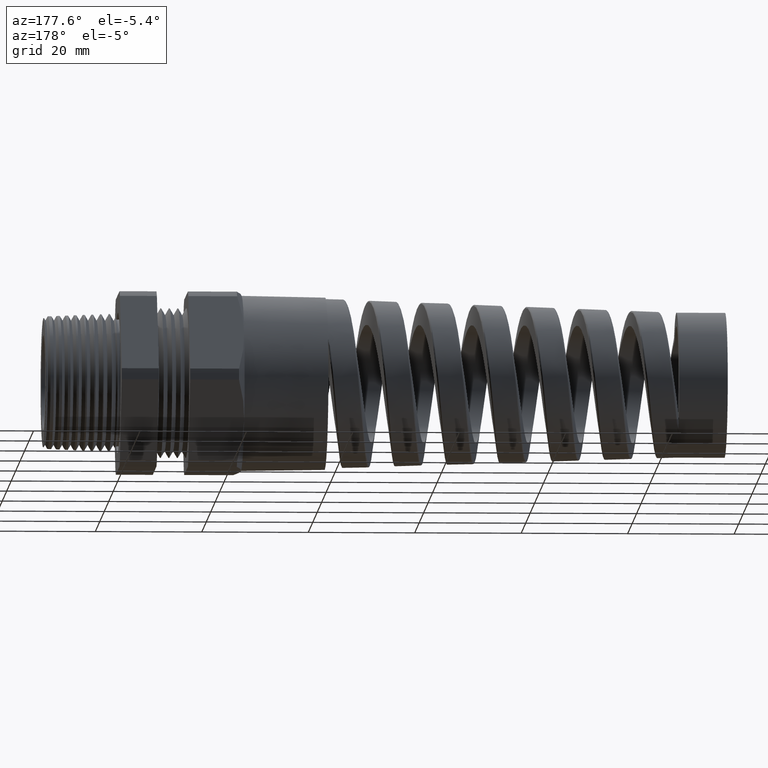
[diagram: clean part render]
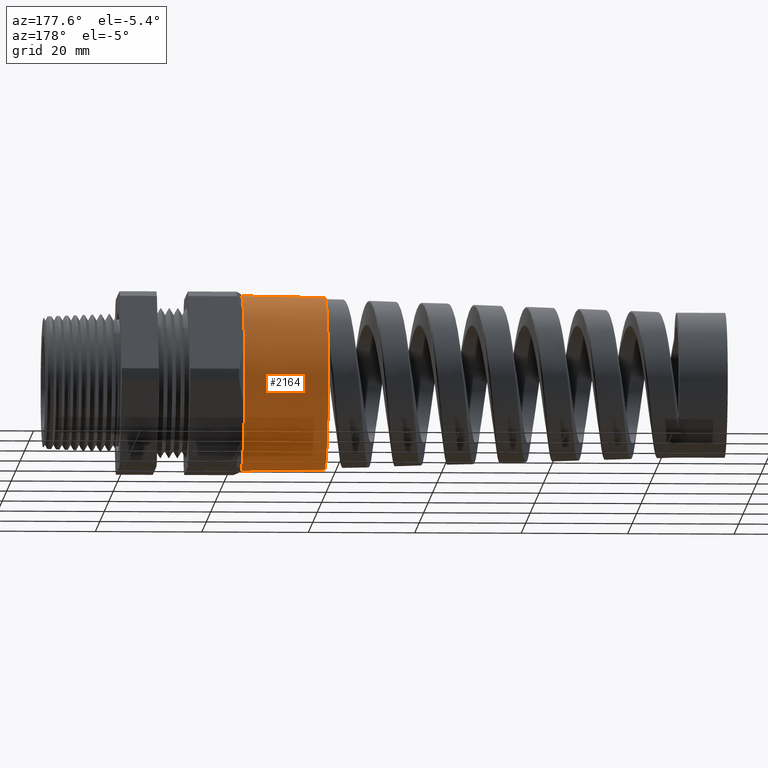
[diagram: same view with one face highlighted and labeled with its STEP entity id]
A machine part, auxiliary view. The second image highlights one B-rep face of the part: STEP entity #2164.
In plain terms, the highlighted conical surface has half-angle 1 deg.
Its self-contained STEP definition (entity closure, byte-faithful):
#617 = EDGE_CURVE ( 'NONE', #668, #623, #2600, .T. ) ;
#623 = VERTEX_POINT ( 'NONE', #2591 ) ;
#625 = VERTEX_POINT ( 'NONE', #2590 ) ;
#636 = EDGE_CURVE ( 'NONE', #683, #625, #2787, .T. ) ;
#668 = VERTEX_POINT ( 'NONE', #2991 ) ;
#683 = VERTEX_POINT ( 'NONE', #3228 ) ;
#1033 = EDGE_CURVE ( 'NONE', #668, #683, #3836, .T. ) ;
#2126 = ORIENTED_EDGE ( 'NONE', *, *, #636, .F. ) ;
#2164 = ADVANCED_FACE ( 'NONE', ( #4923 ), #4921, .T. ) ;
#2169 = ORIENTED_EDGE ( 'NONE', *, *, #617, .T. ) ;
#2211 = ORIENTED_EDGE ( 'NONE', *, *, #1033, .F. ) ;
#2214 = ORIENTED_EDGE ( 'NONE', *, *, #10336, .T. ) ;
#2231 = ORIENTED_EDGE ( 'NONE', *, *, #10430, .T. ) ;
#2411 = EDGE_LOOP ( 'NONE', ( #2126, #2211, #2169, #2231, #2214, #10426 ) ) ;
#2590 = CARTESIAN_POINT ( 'NONE',  ( -0.9125000000000002000, 0.0000000000000000000, -0.6500000000000000200 ) ) ;
#2591 = CARTESIAN_POINT ( 'NONE',  ( -0.9125000000000002000, 0.0000000000000000000, 0.6499999999999998000 ) ) ;
#2593 = DIRECTION ( 'NONE',  ( 0.9998476951563912700, 0.0000000000000000000, 0.01745240643728355000 ) ) ;
#2594 = VECTOR ( 'NONE', #2593, 39.37007874015748100 ) ;
#2595 = CARTESIAN_POINT ( 'NONE',  ( -0.9125000000000002000, 0.0000000000000000000, 0.6499999999999999100 ) ) ;
#2600 = LINE ( 'NONE', #2595, #2594 ) ;
#2784 = DIRECTION ( 'NONE',  ( 0.9998476951563912700, -2.137303368083796300E-018, -0.01745240643728355000 ) ) ;
#2785 = VECTOR ( 'NONE', #2784, 39.37007874015748100 ) ;
#2786 = CARTESIAN_POINT ( 'NONE',  ( -0.9125000000000002000, -7.960204194457794200E-017, -0.6499999999999999100 ) ) ;
#2787 = LINE ( 'NONE', #2786, #2785 ) ;
#2991 = CARTESIAN_POINT ( 'NONE',  ( -1.532120000000000100, 0.0000000000000000000, 0.6391844926691776500 ) ) ;
#3228 = CARTESIAN_POINT ( 'NONE',  ( -1.532120000000000100, -7.893978312288564000E-017, -0.6391844926691776500 ) ) ;
#3832 = DIRECTION ( 'NONE',  ( 0.0000000000000000000, 0.0000000000000000000, 1.000000000000000000 ) ) ;
#3833 = DIRECTION ( 'NONE',  ( -1.000000000000000000, 0.0000000000000000000, 0.0000000000000000000 ) ) ;
#3834 = CARTESIAN_POINT ( 'NONE',  ( -1.532120000000000100, 0.0000000000000000000, 0.0000000000000000000 ) ) ;
#3835 = AXIS2_PLACEMENT_3D ( 'NONE', #3834, #3833, #3832 ) ;
#3836 = CIRCLE ( 'NONE', #3835, 0.6391844926691776500 ) ;
#4918 = DIRECTION ( 'NONE',  ( 0.0000000000000000000, 0.0000000000000000000, 1.000000000000000000 ) ) ;
#4919 = DIRECTION ( 'NONE',  ( 1.000000000000000000, 0.0000000000000000000, 0.0000000000000000000 ) ) ;
#4920 = AXIS2_PLACEMENT_3D ( 'NONE', #4922, #4919, #4918 ) ;
#4921 = CONICAL_SURFACE ( 'NONE', #4920, 0.6499999999999999100, 0.01745329251994333400 ) ;
#4922 = CARTESIAN_POINT ( 'NONE',  ( -0.9125000000000002000, 0.0000000000000000000, 0.0000000000000000000 ) ) ;
#4923 = FACE_OUTER_BOUND ( 'NONE', #2411, .T. ) ;
#6359 = DIRECTION ( 'NONE',  ( 0.0000000000000000000, 0.0000000000000000000, 1.000000000000000000 ) ) ;
#6360 = DIRECTION ( 'NONE',  ( -1.000000000000000000, 0.0000000000000000000, 0.0000000000000000000 ) ) ;
#6361 = CARTESIAN_POINT ( 'NONE',  ( -0.9125000000000002000, 0.0000000000000000000, 0.0000000000000000000 ) ) ;
#6362 = AXIS2_PLACEMENT_3D ( 'NONE', #6361, #6360, #6359 ) ;
#6363 = CIRCLE ( 'NONE', #6362, 0.6499999999999998000 ) ;
#7217 = DIRECTION ( 'NONE',  ( 0.0000000000000000000, 0.0000000000000000000, 1.000000000000000000 ) ) ;
#7218 = DIRECTION ( 'NONE',  ( -1.000000000000000000, 0.0000000000000000000, 0.0000000000000000000 ) ) ;
#7219 = CARTESIAN_POINT ( 'NONE',  ( -0.9125000000000002000, 0.0000000000000000000, 0.0000000000000000000 ) ) ;
#7220 = AXIS2_PLACEMENT_3D ( 'NONE', #7219, #7218, #7217 ) ;
#7225 = CIRCLE ( 'NONE', #7220, 0.6499999999999998000 ) ;
#10150 = CARTESIAN_POINT ( 'NONE',  ( -0.9125000000000002000, 0.5629165124598850500, -0.3250000000000000100 ) ) ;
#10336 = EDGE_CURVE ( 'NONE', #10575, #14076, #6363, .T. ) ;
#10404 = EDGE_CURVE ( 'NONE', #14076, #625, #7225, .T. ) ;
#10426 = ORIENTED_EDGE ( 'NONE', *, *, #10404, .T. ) ;
#10430 = EDGE_CURVE ( 'NONE', #623, #10575, #11485, .T. ) ;
#10575 = VERTEX_POINT ( 'NONE', #11499 ) ;
#11481 = DIRECTION ( 'NONE',  ( 0.0000000000000000000, 0.0000000000000000000, 1.000000000000000000 ) ) ;
#11482 = DIRECTION ( 'NONE',  ( -1.000000000000000000, 0.0000000000000000000, 0.0000000000000000000 ) ) ;
#11483 = CARTESIAN_POINT ( 'NONE',  ( -0.9125000000000002000, 0.0000000000000000000, 0.0000000000000000000 ) ) ;
#11484 = AXIS2_PLACEMENT_3D ( 'NONE', #11483, #11482, #11481 ) ;
#11485 = CIRCLE ( 'NONE', #11484, 0.6499999999999998000 ) ;
#11499 = CARTESIAN_POINT ( 'NONE',  ( -0.9125000000000002000, 0.5629165124598849400, 0.3250000000000001800 ) ) ;
#14076 = VERTEX_POINT ( 'NONE', #10150 ) ;